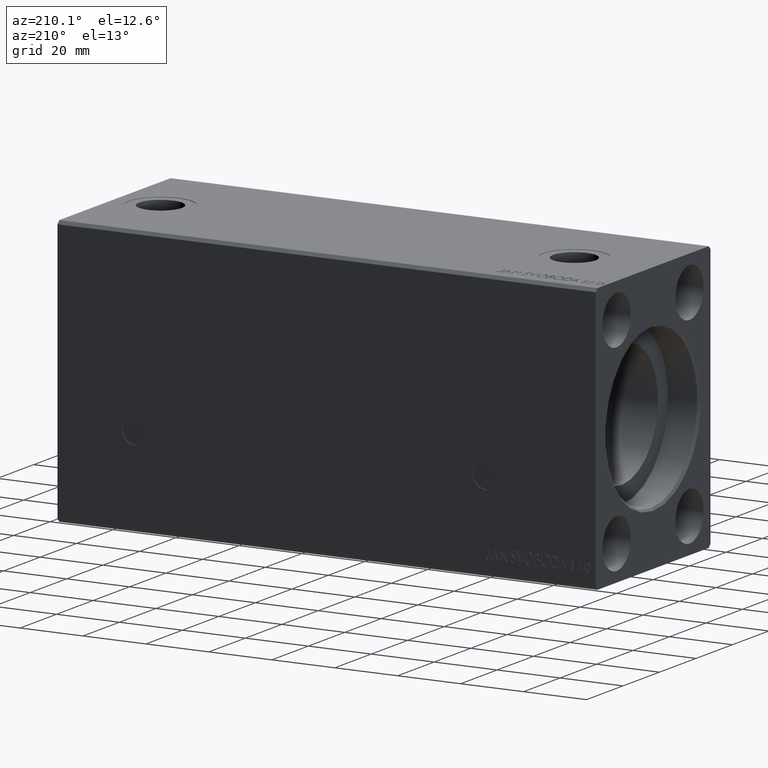
[diagram: clean part render]
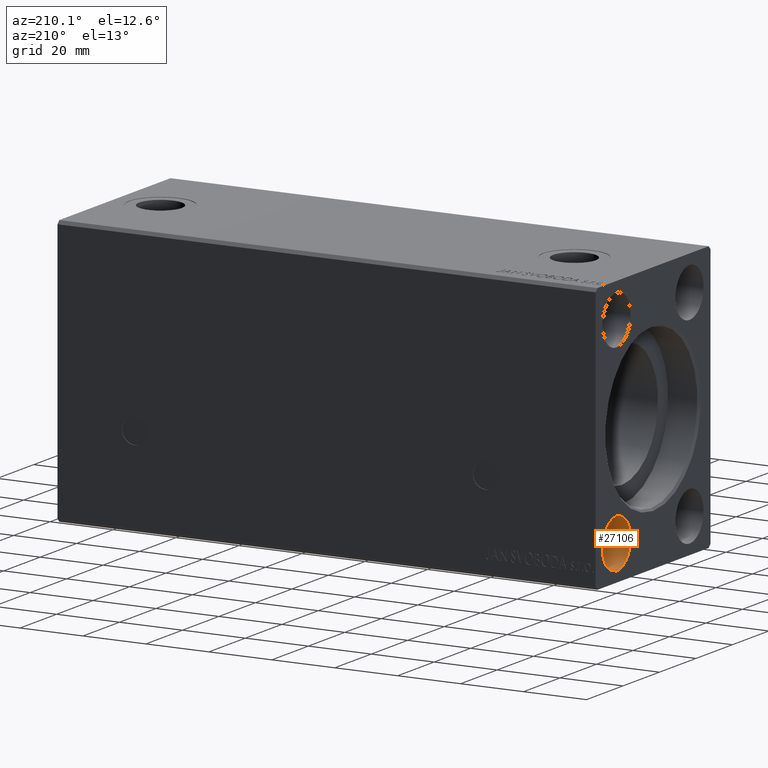
[diagram: same view with one face highlighted and labeled with its STEP entity id]
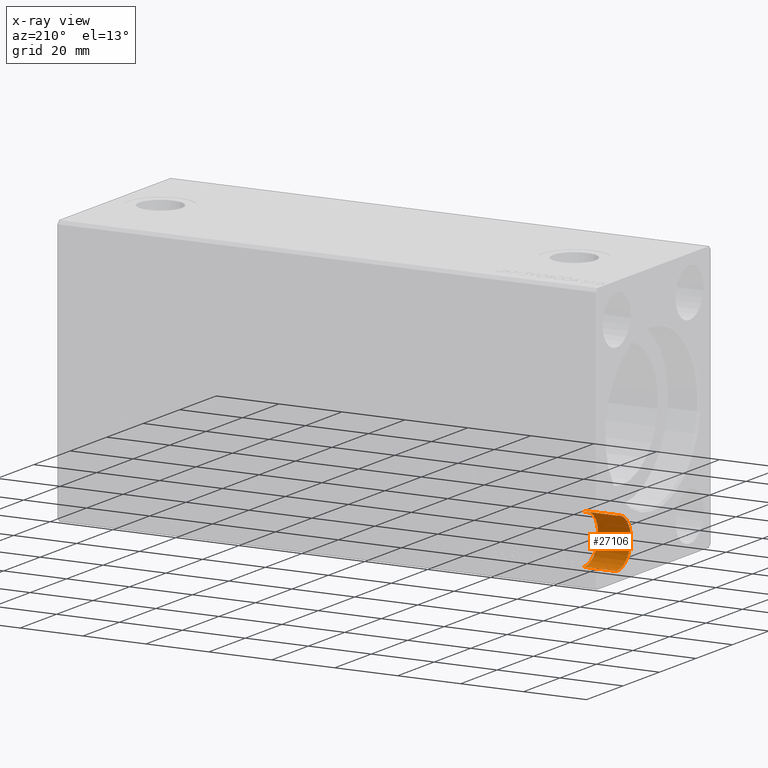
[diagram: x-ray of the same camera — body ghosted, the highlighted face saturated]
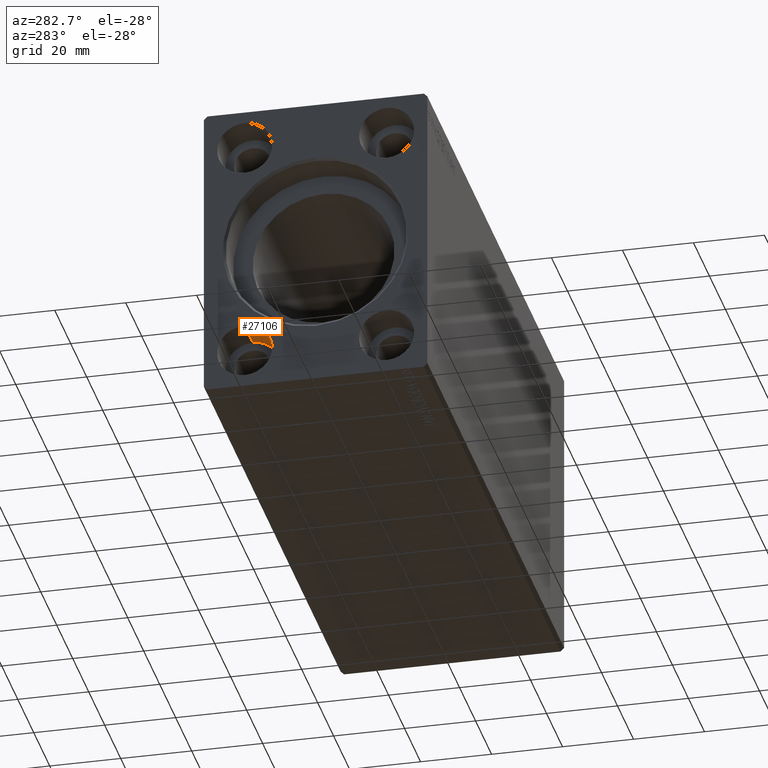
[diagram: same view with one face highlighted and labeled with its STEP entity id]
A machine part, auxiliary view. The second image highlights one B-rep face of the part: STEP entity #27106.
The next image is the same camera in x-ray: the body ghosted, the highlighted face saturated — about 0% of this face is hidden behind the body in this view.
A second angle (auxiliary view) of the same face is appended — the face is thin or edge-on in the first view.
In plain terms, the highlighted cylindrical surface (edge-blend (fillet) strip) has radius 7.75 mm, axis along (-1, -0, -0).
Its self-contained STEP definition (entity closure, byte-faithful):
#1924 = VERTEX_POINT ( 'NONE', #18864 ) ;
#3914 = DIRECTION ( 'NONE',  ( -1.000000000000000000, -0.000000000000000000, -0.000000000000000000 ) ) ;
#3915 = FACE_OUTER_BOUND ( 'NONE', #6367, .T. ) ;
#6367 = EDGE_LOOP ( 'NONE', ( #17866, #28176, #23726, #41489 ) ) ;
#7184 = CIRCLE ( 'NONE', #23629, 7.750000000000000000 ) ;
#11557 = CARTESIAN_POINT ( 'NONE',  ( 0.000000000000000000, 20.00000000000000355, -39.24999999999998579 ) ) ;
#12998 = CARTESIAN_POINT ( 'NONE',  ( 10.33000000000000007, 20.00000000000000355, -39.24999999999998579 ) ) ;
#13358 = CARTESIAN_POINT ( 'NONE',  ( 10.33000000000000007, 20.00000000000000355, -31.49999999999998579 ) ) ;
#13527 = EDGE_CURVE ( 'NONE', #41787, #40496, #22878, .T. ) ;
#14560 = DIRECTION ( 'NONE',  ( 0.000000000000000000, 0.000000000000000000, 1.000000000000000000 ) ) ;
#14740 = VERTEX_POINT ( 'NONE', #20401 ) ;
#16740 = VECTOR ( 'NONE', #35994, 1000.000000000000000 ) ;
#16937 = CARTESIAN_POINT ( 'NONE',  ( 0.000000000000000000, 20.00000000000000355, -31.49999999999998579 ) ) ;
#17866 = ORIENTED_EDGE ( 'NONE', *, *, #21021, .F. ) ;
#18847 = CARTESIAN_POINT ( 'NONE',  ( 10.33000000000000007, 20.00000000000000355, -31.49999999999998579 ) ) ;
#18864 = CARTESIAN_POINT ( 'NONE',  ( 10.33000000000000007, 20.00000000000000355, -23.74999999999998579 ) ) ;
#19254 = AXIS2_PLACEMENT_3D ( 'NONE', #13358, #30088, #26465 ) ;
#20401 = CARTESIAN_POINT ( 'NONE',  ( 0.000000000000000000, 20.00000000000000355, -23.74999999999998579 ) ) ;
#20712 = AXIS2_PLACEMENT_3D ( 'NONE', #16937, #24226, #14560 ) ;
#21021 = EDGE_CURVE ( 'NONE', #41787, #1924, #7184, .T. ) ;
#21325 = VECTOR ( 'NONE', #3914, 1000.000000000000000 ) ;
#22878 = LINE ( 'NONE', #12998, #16740 ) ;
#23629 = AXIS2_PLACEMENT_3D ( 'NONE', #18847, #28310, #31723 ) ;
#23726 = ORIENTED_EDGE ( 'NONE', *, *, #28604, .T. ) ;
#24226 = DIRECTION ( 'NONE',  ( -1.000000000000000000, 0.000000000000000000, 0.000000000000000000 ) ) ;
#26465 = DIRECTION ( 'NONE',  ( 0.000000000000000000, 0.000000000000000000, 1.000000000000000000 ) ) ;
#26930 = CIRCLE ( 'NONE', #20712, 7.750000000000000000 ) ;
#27106 = ADVANCED_FACE ( 'NONE', ( #3915 ), #33742, .F. ) ;
#28176 = ORIENTED_EDGE ( 'NONE', *, *, #13527, .T. ) ;
#28310 = DIRECTION ( 'NONE',  ( -1.000000000000000000, 0.000000000000000000, 0.000000000000000000 ) ) ;
#28604 = EDGE_CURVE ( 'NONE', #40496, #14740, #26930, .T. ) ;
#29675 = LINE ( 'NONE', #30300, #21325 ) ;
#30088 = DIRECTION ( 'NONE',  ( -1.000000000000000000, -0.000000000000000000, -0.000000000000000000 ) ) ;
#30300 = CARTESIAN_POINT ( 'NONE',  ( 10.33000000000000007, 20.00000000000000355, -23.74999999999998579 ) ) ;
#31723 = DIRECTION ( 'NONE',  ( 0.000000000000000000, 0.000000000000000000, 1.000000000000000000 ) ) ;
#32963 = CARTESIAN_POINT ( 'NONE',  ( 10.33000000000000007, 20.00000000000000355, -39.24999999999998579 ) ) ;
#33742 = CYLINDRICAL_SURFACE ( 'NONE', #19254, 7.750000000000000000 ) ;
#35580 = EDGE_CURVE ( 'NONE', #1924, #14740, #29675, .T. ) ;
#35994 = DIRECTION ( 'NONE',  ( -1.000000000000000000, -0.000000000000000000, -0.000000000000000000 ) ) ;
#40496 = VERTEX_POINT ( 'NONE', #11557 ) ;
#41489 = ORIENTED_EDGE ( 'NONE', *, *, #35580, .F. ) ;
#41787 = VERTEX_POINT ( 'NONE', #32963 ) ;